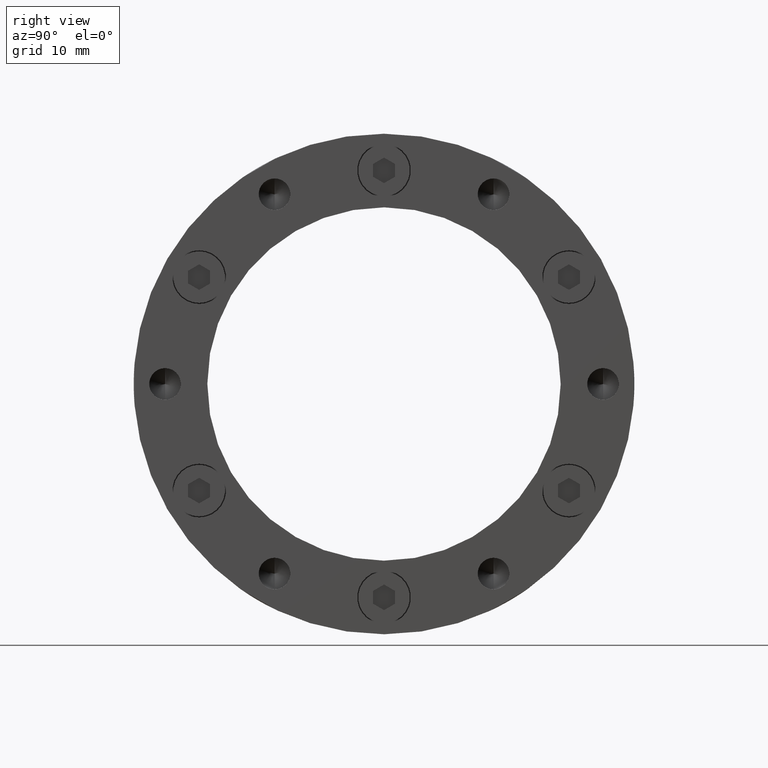
[diagram: clean part render]
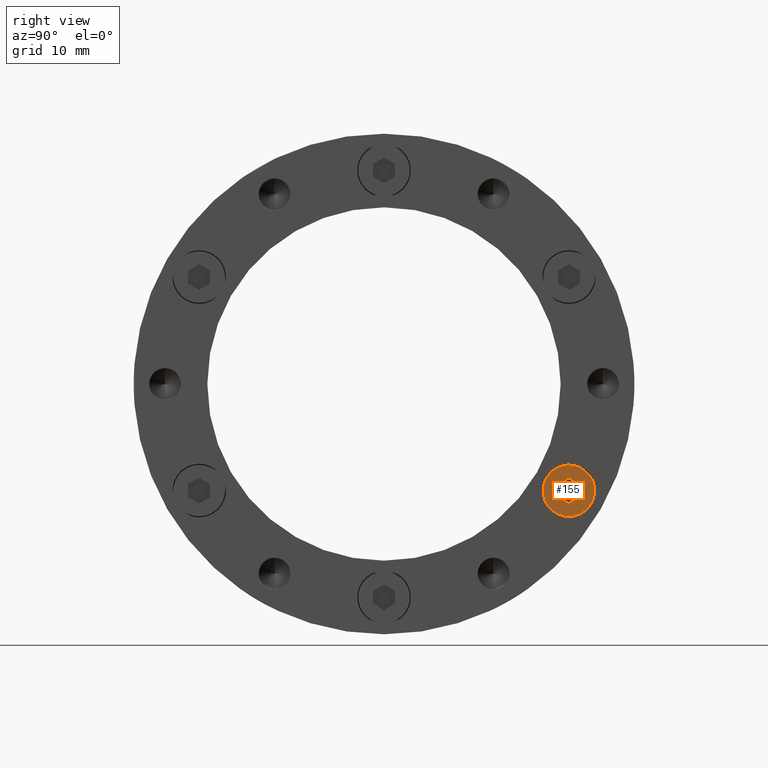
[diagram: same view with one face highlighted and labeled with its STEP entity id]
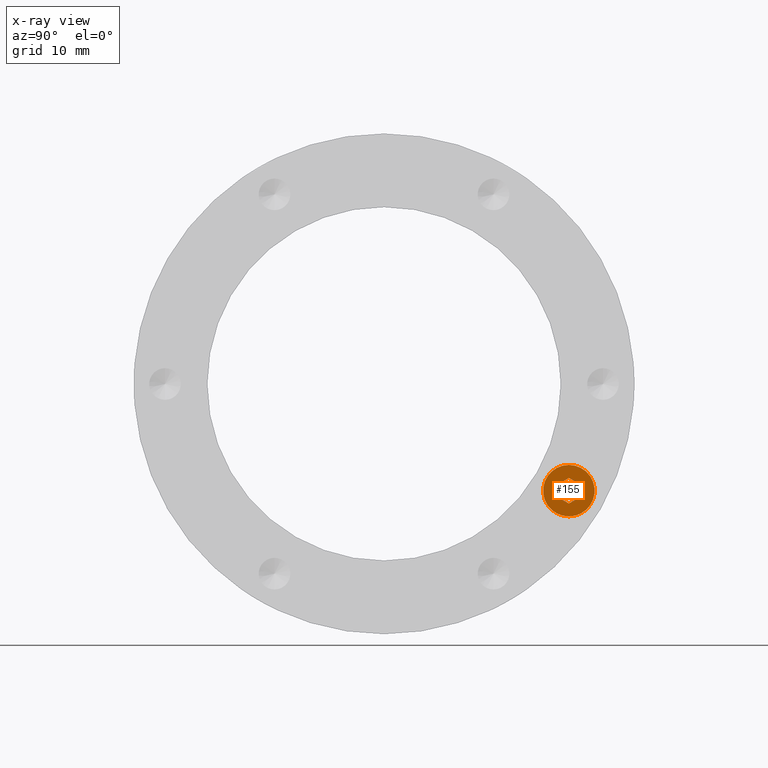
[diagram: x-ray of the same camera — body ghosted, the highlighted face saturated]
A machine part, right view. The second image highlights one B-rep face of the part: STEP entity #155.
The next image is the same camera in x-ray: the body ghosted, the highlighted face saturated — about 0% of this face is hidden behind the body in this view.
In plain terms, the highlighted planar face has unit normal (1, 0, 0).
Its self-contained STEP definition (entity closure, byte-faithful):
#155 = ADVANCED_FACE ( 'NONE', ( #2262, #2265 ), #544, .T. ) ;
#536 = CARTESIAN_POINT ( 'NONE',  ( 0.0000000000000000000, 4.000000000000000000, 0.0000000000000000000 ) ) ;
#544 = PLANE ( 'NONE',  #2042 ) ;
#546 = DIRECTION ( 'NONE',  ( 0.0000000000000000000, 1.000000000000000000, 0.0000000000000000000 ) ) ;
#547 = DIRECTION ( 'NONE',  ( 0.0000000000000000000, -0.0000000000000000000, 1.000000000000000000 ) ) ;
#1044 = ORIENTED_EDGE ( 'NONE', *, *, #1609, .F. ) ;
#1045 = ORIENTED_EDGE ( 'NONE', *, *, #1610, .F. ) ;
#1046 = ORIENTED_EDGE ( 'NONE', *, *, #1611, .F. ) ;
#1047 = ORIENTED_EDGE ( 'NONE', *, *, #1612, .F. ) ;
#1048 = ORIENTED_EDGE ( 'NONE', *, *, #1613, .F. ) ;
#1049 = ORIENTED_EDGE ( 'NONE', *, *, #1614, .F. ) ;
#1050 = ORIENTED_EDGE ( 'NONE', *, *, #1608, .T. ) ;
#1051 = ORIENTED_EDGE ( 'NONE', *, *, #1602, .T. ) ;
#1234 = EDGE_LOOP ( 'NONE', ( #1044, #1045, #1046, #1047, #1048, #1049 ) ) ;
#1279 = EDGE_LOOP ( 'NONE', ( #1050, #1051 ) ) ;
#1602 = EDGE_CURVE ( 'NONE', #1724, #1725, #2588, .T. ) ;
#1608 = EDGE_CURVE ( 'NONE', #1725, #1724, #2599, .T. ) ;
#1609 = EDGE_CURVE ( 'NONE', #1718, #1728, #2600, .T. ) ;
#1610 = EDGE_CURVE ( 'NONE', #1732, #1718, #2596, .T. ) ;
#1611 = EDGE_CURVE ( 'NONE', #1733, #1732, #2601, .T. ) ;
#1612 = EDGE_CURVE ( 'NONE', #1723, #1733, #2603, .T. ) ;
#1613 = EDGE_CURVE ( 'NONE', #1729, #1723, #2605, .T. ) ;
#1614 = EDGE_CURVE ( 'NONE', #1728, #1729, #2607, .T. ) ;
#1718 = VERTEX_POINT ( 'NONE', #3702 ) ;
#1723 = VERTEX_POINT ( 'NONE', #3707 ) ;
#1724 = VERTEX_POINT ( 'NONE', #3708 ) ;
#1725 = VERTEX_POINT ( 'NONE', #3709 ) ;
#1728 = VERTEX_POINT ( 'NONE', #3712 ) ;
#1729 = VERTEX_POINT ( 'NONE', #3713 ) ;
#1732 = VERTEX_POINT ( 'NONE', #3716 ) ;
#1733 = VERTEX_POINT ( 'NONE', #3717 ) ;
#2042 = AXIS2_PLACEMENT_3D ( 'NONE', #536, #546, #547 ) ;
#2262 = FACE_BOUND ( 'NONE', #1234, .T. ) ;
#2265 = FACE_OUTER_BOUND ( 'NONE', #1279, .T. ) ;
#2588 = CIRCLE ( 'NONE', #4025, 3.500000000000000000 ) ;
#2596 = LINE ( 'NONE', #3573, #2604 ) ;
#2599 = CIRCLE ( 'NONE', #4029, 3.500000000000000000 ) ;
#2600 = LINE ( 'NONE', #3567, #2602 ) ;
#2601 = LINE ( 'NONE', #3572, #2606 ) ;
#2602 = VECTOR ( 'NONE', #3568, 1000.000000000000000 ) ;
#2603 = LINE ( 'NONE', #3577, #2608 ) ;
#2604 = VECTOR ( 'NONE', #3578, 1000.000000000000000 ) ;
#2605 = LINE ( 'NONE', #3579, #2610 ) ;
#2606 = VECTOR ( 'NONE', #3580, 1000.000000000000000 ) ;
#2607 = LINE ( 'NONE', #3581, #2612 ) ;
#2608 = VECTOR ( 'NONE', #3582, 1000.000000000000100 ) ;
#2610 = VECTOR ( 'NONE', #3583, 1000.000000000000000 ) ;
#2612 = VECTOR ( 'NONE', #3585, 1000.000000000000000 ) ;
#3557 = CARTESIAN_POINT ( 'NONE',  ( 0.0000000000000000000, 4.000000000000000000, 0.0000000000000000000 ) ) ;
#3558 = DIRECTION ( 'NONE',  ( 0.0000000000000000000, 1.000000000000000000, 0.0000000000000000000 ) ) ;
#3559 = DIRECTION ( 'NONE',  ( 0.0000000000000000000, 0.0000000000000000000, 1.000000000000000000 ) ) ;
#3567 = CARTESIAN_POINT ( 'NONE',  ( 1.499999999999999800, 4.000000000000000000, -0.8660254037844389300 ) ) ;
#3568 = DIRECTION ( 'NONE',  ( -0.8660254037844387100, 0.0000000000000000000, -0.4999999999999998300 ) ) ;
#3572 = CARTESIAN_POINT ( 'NONE',  ( 4.046263255784118500E-016, 4.000000000000000000, 1.732050807568877400 ) ) ;
#3573 = CARTESIAN_POINT ( 'NONE',  ( 1.500000000000000000, 4.000000000000000000, 0.8660254037844387100 ) ) ;
#3574 = CARTESIAN_POINT ( 'NONE',  ( 0.0000000000000000000, 4.000000000000000000, 0.0000000000000000000 ) ) ;
#3575 = DIRECTION ( 'NONE',  ( 0.0000000000000000000, 1.000000000000000000, 0.0000000000000000000 ) ) ;
#3576 = DIRECTION ( 'NONE',  ( 0.0000000000000000000, 0.0000000000000000000, 1.000000000000000000 ) ) ;
#3577 = CARTESIAN_POINT ( 'NONE',  ( -1.499999999999999100, 4.000000000000000000, 0.8660254037844393700 ) ) ;
#3578 = DIRECTION ( 'NONE',  ( -1.251928832280965900E-016, 0.0000000000000000000, -1.000000000000000000 ) ) ;
#3579 = CARTESIAN_POINT ( 'NONE',  ( -1.499999999999999800, 4.000000000000000000, -0.8660254037844386000 ) ) ;
#3580 = DIRECTION ( 'NONE',  ( 0.8660254037844386000, 0.0000000000000000000, -0.5000000000000001100 ) ) ;
#3581 = CARTESIAN_POINT ( 'NONE',  ( -1.767567020076689400E-016, 4.000000000000000000, -1.732050807568877200 ) ) ;
#3582 = DIRECTION ( 'NONE',  ( 0.8660254037844387100, 0.0000000000000000000, 0.4999999999999998300 ) ) ;
#3583 = DIRECTION ( 'NONE',  ( 3.755786496842897100E-016, 0.0000000000000000000, 1.000000000000000000 ) ) ;
#3585 = DIRECTION ( 'NONE',  ( -0.8660254037844386000, 0.0000000000000000000, 0.5000000000000001100 ) ) ;
#3702 = CARTESIAN_POINT ( 'NONE',  ( 1.499999999999999800, 4.000000000000000000, -0.8660254037844389300 ) ) ;
#3707 = CARTESIAN_POINT ( 'NONE',  ( -1.499999999999999100, 4.000000000000000000, 0.8660254037844393700 ) ) ;
#3708 = CARTESIAN_POINT ( 'NONE',  ( 4.286263797015736600E-016, 4.000000000000000000, 3.500000000000000000 ) ) ;
#3709 = CARTESIAN_POINT ( 'NONE',  ( 0.0000000000000000000, 4.000000000000000000, -3.500000000000000000 ) ) ;
#3712 = CARTESIAN_POINT ( 'NONE',  ( -1.084202172485504400E-016, 4.000000000000000000, -1.732050807568877200 ) ) ;
#3713 = CARTESIAN_POINT ( 'NONE',  ( -1.499999999999999800, 4.000000000000000000, -0.8660254037844386000 ) ) ;
#3716 = CARTESIAN_POINT ( 'NONE',  ( 1.500000000000000000, 4.000000000000000000, 0.8660254037844387100 ) ) ;
#3717 = CARTESIAN_POINT ( 'NONE',  ( 4.046263255784118500E-016, 4.000000000000000000, 1.732050807568877400 ) ) ;
#4025 = AXIS2_PLACEMENT_3D ( 'NONE', #3557, #3558, #3559 ) ;
#4029 = AXIS2_PLACEMENT_3D ( 'NONE', #3574, #3575, #3576 ) ;